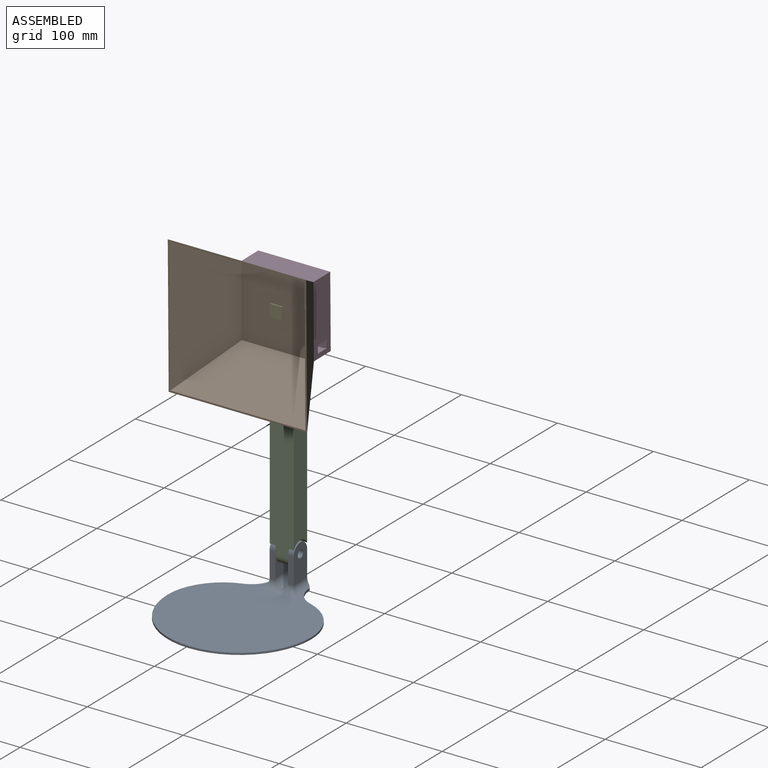
[diagram: assembled view]
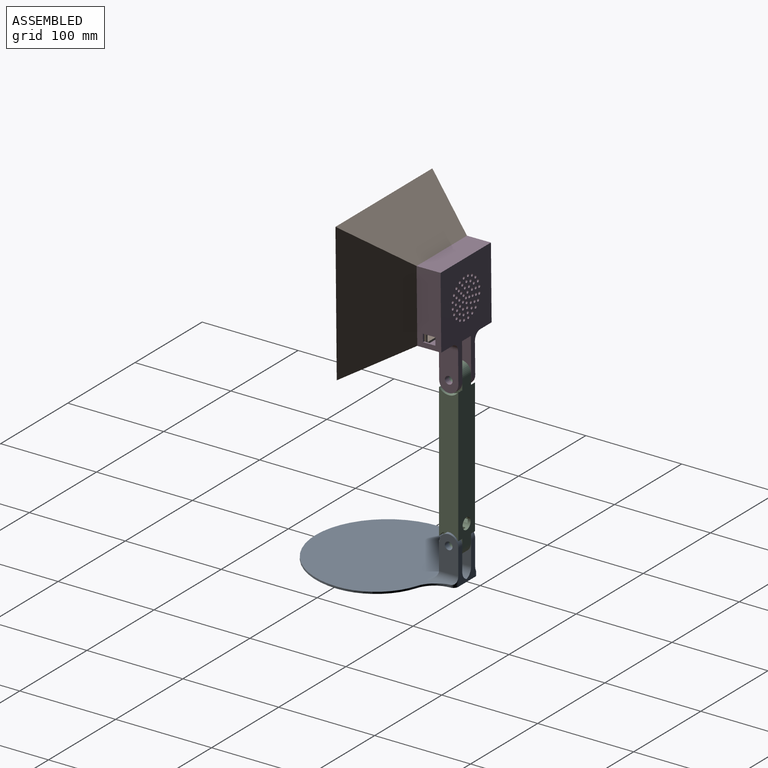
[diagram: assembled view, second angle]
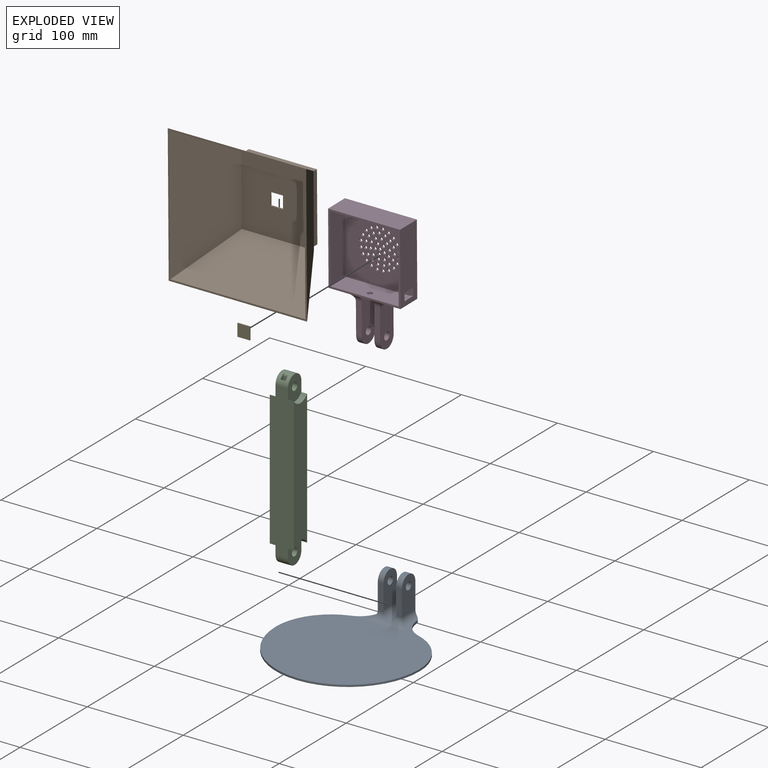
[diagram: exploded view]
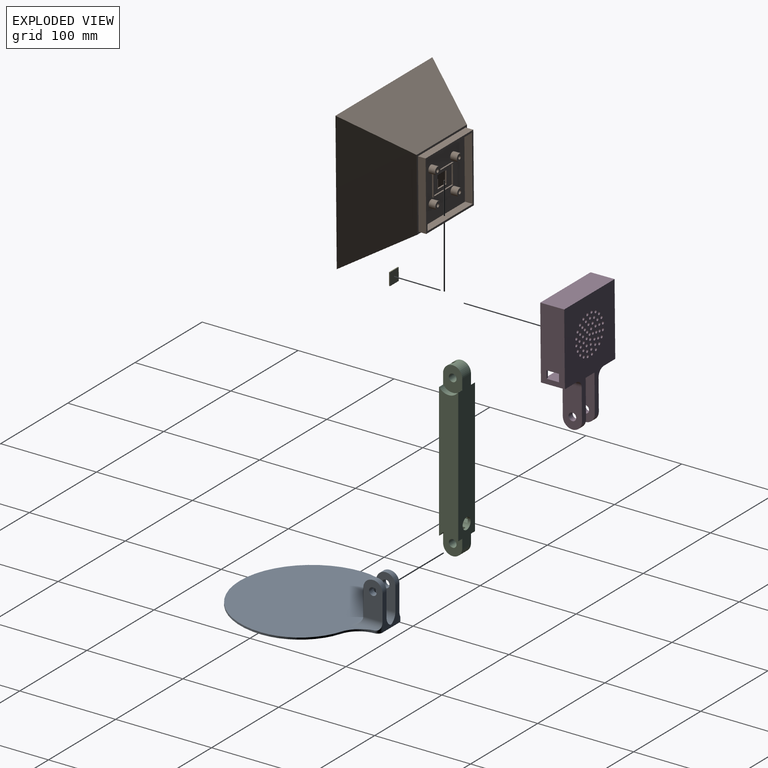
[diagram: exploded view, second angle]
ASSEMBLY  parts=5 mates=4
PART A: 28 faces, bbox 157.5x150x47 mm
  f0: plane 150x141.62mm, normal (0,0,1), area 15996.7mm2, adj f1,f2,f3,f6,f7,f17,f18,f19
  f1: cylinder r=57.5mm len=54.8mm, axis (0,0,-1), area 145.2mm2, adj f0,f2,f5,f7
  f2: cylinder r=75mm len=150mm, axis (0,0,-1), area 471.2mm2, adj f0,f1,f3,f5
  f3: cylinder r=57.5mm len=54.8mm, axis (0,0,-1), area 145.2mm2, adj f0,f2,f5,f6
  f4: plane 37x25.04mm, normal (-1,0,0), area 508.3mm2, adj f5,f8,f9,f10,f13,f21,f23,f26
  f5: plane 157.5x150mm, normal (0,0,-1), area 17064.4mm2, adj f1,f2,f3,f4,f6,f7,f8,f9
  f6: cylinder r=25mm len=22.89mm, axis (0,0,-1), area 64.8mm2, adj f0,f3,f5,f8,f19
  f7: cylinder r=25mm len=22.89mm, axis (0,0,-1), area 64.8mm2, adj f0,f1,f5,f9,f18
  f8: cylinder r=5mm len=37.07mm, axis (0,0,-1), area 32.8mm2, adj f4,f5,f6,f15,f19,f23
  f9: cylinder r=5mm len=37.07mm, axis (0,0,-1), area 32.8mm2, adj f4,f5,f7,f11,f18,f21
  f10: plane 35x20mm, normal (0,1,0), area 606.8mm2, adj f4,f12,f21,f25,f27
  f11: plane 37x20mm, normal (0,-1,0), area 646.8mm2, adj f9,f12,f18,f21,f25
  f12: plane 27x6.2mm, normal (1,0,0), area 162.1mm2, adj f10,f11,f17,f21,f27
  f13: plane 35x20mm, normal (0,-1,0), area 606.8mm2, adj f4,f14,f16,f22,f23,f24,f26
  f14: plane 27x6.2mm, normal (1,0,0), area 162.1mm2, adj f13,f15,f20,f22,f26
  f15: plane 37x20mm, normal (0,1,0), area 646.8mm2, adj f8,f14,f16,f19,f22,f23,f24
  f16: plane 6x0mm, normal (0,0,1), area 0mm2, adj f13,f15,f22,f23
  f17: cylinder r=8mm len=20.57mm, axis (0,1,0), area 152.6mm2, adj f0,f12,f18,f26,f27
  f18: cylinder r=8mm len=28mm, axis (1,0,0), area 243.9mm2, adj f0,f7,f9,f11,f17
  f19: cylinder r=8mm len=28mm, axis (-1,0,0), area 243.9mm2, adj f0,f6,f8,f15,f20
  f20: cylinder r=8mm len=24mm, axis (0,1,0), area 163.3mm2, adj f0,f14,f19,f26
  f21: cylinder r=10mm len=20mm, axis (0,-1,0), area 188.5mm2, adj f4,f9,f10,f11,f12
  f22: cylinder r=10mm len=10mm, axis (0,-1,0), area 94.2mm2, adj f13,f14,f15,f16
  f23: cylinder r=10mm len=10mm, axis (0,1,0), area 94.2mm2, adj f4,f8,f13,f15,f16
  f24: cylinder r=4mm len=8mm, axis (0,-1,0), area 150.8mm2, adj f13,f15
  f25: cylinder r=4mm len=8mm, axis (0,-1,0), area 150.8mm2, adj f10,f11
  f26: cylinder r=10mm len=28mm, axis (1,0,0), area 262.1mm2, adj f0,f4,f13,f14,f17,f20,f27
  f27: cylinder r=10mm len=24.94mm, axis (-1,0,0), area 262.1mm2, adj f4,f10,f12,f17,f26
PART B: 51 faces, bbox 144.3x144.3x68 mm
  f0: plane 28x20mm, normal (0,0,1), area 389.2mm2, adj f13,f14,f15,f16,f42,f43,f44,f49
  f1: plane 67x67mm, normal (0,0,1), area 3627.9mm2, adj f20,f21,f22,f23,f27,f31,f35,f39
  f2: plane 73.27x73.27mm, normal (0,0,-1), area 5197.4mm2, adj f9,f10,f11,f12,f13,f14,f15,f16
  f3: plane 144.28x144.28mm, normal (0,0,-1), area 987.6mm2, adj f4,f5,f6,f7,f9,f10,f11,f12
  f4: plane 144.28x60mm, normal (0,0.87,0.5), area 7596.2mm2, adj f3,f5,f7,f8
  f5: plane 144.28x60mm, normal (-0.87,0,0.5), area 7596.2mm2, adj f3,f4,f6,f8
  f6: plane 144.28x60mm, normal (0,-0.87,0.5), area 7596.2mm2, adj f3,f5,f7,f8
  f7: plane 144.28x60mm, normal (0.87,0,0.5), area 7596.2mm2, adj f3,f4,f6,f8
  f8: plane 75x75mm, normal (0,0,1), area 584mm2, adj f4,f5,f6,f7,f17,f18,f19,f24
  f9: plane 140.82x58.5mm, normal (0,-0.87,-0.5), area 7230.7mm2, adj f2,f3,f10,f12
  f10: plane 140.82x58.5mm, normal (0.87,0,-0.5), area 7230.7mm2, adj f2,f3,f9,f11
  f11: plane 140.82x58.5mm, normal (0,0.87,-0.5), area 7230.7mm2, adj f2,f3,f10,f12
  f12: plane 140.82x58.5mm, normal (-0.87,0,-0.5), area 7230.7mm2, adj f2,f3,f9,f11
  f13: plane 13.07x1.5mm, normal (0,-1,0), area 19.6mm2, adj f0,f2,f14,f16
  f14: plane 13.07x1.5mm, normal (-1,0,0), area 19.6mm2, adj f0,f2,f13,f15
  f15: plane 13.07x1.5mm, normal (0,1,0), area 19.6mm2, adj f0,f2,f14,f16
  f16: plane 13.07x1.5mm, normal (1,0,0), area 19.6mm2, adj f0,f2,f13,f15
  f17: plane 71x8mm, normal (0,-1,0), area 568mm2, adj f8,f18,f24,f25
  f18: plane 71x8mm, normal (1,0,0), area 568mm2, adj f8,f17,f19,f25
  f19: plane 71x8mm, normal (0,1,0), area 568mm2, adj f8,f18,f24,f25
  f20: plane 67x8mm, normal (-1,0,0), area 536mm2, adj f1,f21,f23,f25
  f21: plane 67x8mm, normal (0,1,0), area 536mm2, adj f1,f20,f22,f25
  f22: plane 67x8mm, normal (1,0,0), area 536mm2, adj f1,f21,f23,f25
  f23: plane 67x8mm, normal (0,-1,0), area 536mm2, adj f1,f20,f22,f25
  f24: plane 71x8mm, normal (-1,0,0), area 568mm2, adj f8,f17,f19,f25
  f25: plane 71x71mm, normal (0,0,1), area 552mm2, adj f17,f18,f19,f20,f21,f22,f23,f24
  f26: cylinder r=1.75mm len=7mm, axis (0,0,-1), area 77mm2, adj f28,f29
  f27: cylinder r=4mm len=8mm, axis (0,0,-1), area 175.9mm2, adj f1,f28
  f28: plane 8x8mm, normal (0,0,1), area 40.6mm2, adj f26,f27
  f29: plane 3.5x3.5mm, normal (0,0,1), area 9.6mm2, adj f26
  f30: cylinder r=1.75mm len=7mm, axis (0,0,-1), area 77mm2, adj f32,f33
  f31: cylinder r=4mm len=8mm, axis (0,0,-1), area 175.9mm2, adj f1,f32
  f32: plane 8x8mm, normal (0,0,1), area 40.6mm2, adj f30,f31
  f33: plane 3.5x3.5mm, normal (0,0,1), area 9.6mm2, adj f30
  f34: cylinder r=1.75mm len=7mm, axis (0,0,-1), area 77mm2, adj f36,f37
  f35: cylinder r=4mm len=8mm, axis (0,0,-1), area 175.9mm2, adj f1,f36
  f36: plane 8x8mm, normal (0,0,1), area 40.6mm2, adj f34,f35
  f37: plane 3.5x3.5mm, normal (0,0,1), area 9.6mm2, adj f34
  f38: cylinder r=1.75mm len=7mm, axis (0,0,-1), area 77mm2, adj f40,f41
  f39: cylinder r=4mm len=8mm, axis (0,0,-1), area 175.9mm2, adj f1,f40
  f40: plane 8x8mm, normal (0,0,1), area 40.6mm2, adj f38,f39
  f41: plane 3.5x3.5mm, normal (0,0,1), area 9.6mm2, adj f38
  f42: plane 20x1.5mm, normal (-1,0,0), area 30mm2, adj f0,f43,f49,f50
  f43: plane 28x1.5mm, normal (0,1,0), area 42mm2, adj f0,f42,f44,f50
  f44: plane 20x1.5mm, normal (1,0,0), area 30mm2, adj f0,f43,f49,f50
  f45: plane 22x1.5mm, normal (1,0,0), area 33mm2, adj f1,f46,f48,f50
  f46: plane 30x1.5mm, normal (0,1,0), area 45mm2, adj f1,f45,f47,f50
  f47: plane 22x1.5mm, normal (-1,0,0), area 33mm2, adj f1,f46,f48,f50
  f48: plane 30x1.5mm, normal (0,-1,0), area 45mm2, adj f1,f45,f47,f50
  f49: plane 28x1.5mm, normal (0,-1,0), area 42mm2, adj f0,f42,f44,f50
  f50: plane 30x22mm, normal (0,0,1), area 100mm2, adj f42,f43,f44,f45,f46,f47,f48,f49
PART C: 52 faces, bbox 180x25x20 mm
  f0: plane 160x25mm, normal (0,0,1), area 3760.3mm2, adj f7,f8,f10,f11,f12,f13,f14,f16
  f1: plane 160x25mm, normal (0,0,-1), area 3647.2mm2, adj f7,f8,f10,f11,f12,f13,f14,f16
  f2: plane 133.2x17.18mm, normal (0,0,1), area 2070.8mm2, adj f19,f20,f21,f23,f25,f26,f27,f28
  f3: plane 14x0.1mm, normal (-0.71,-0.71,0), area 2.1mm2, adj f4,f22,f24,f45
  f4: plane 14x7mm, normal (0,-1,0), area 98mm2, adj f3,f6,f22,f24
  f5: plane 14x6.96mm, normal (0,1,0), area 97.5mm2, adj f6,f22,f24,f45
  f6: plane 14x5.18mm, normal (-1,0,0), area 72.6mm2, adj f4,f5,f22,f24
  f7: plane 26x20mm, normal (0,-1,0), area 395mm2, adj f0,f1,f9,f10,f46,f50,f51
  f8: plane 26x20mm, normal (0,1,0), area 395mm2, adj f0,f1,f9,f10,f47,f48,f49
  f9: cylinder r=4mm len=13mm, axis (0,-1,0), area 326.7mm2, adj f7,f8
  f10: cylinder r=10mm len=20mm, axis (0,1,0), area 364.2mm2, adj f0,f1,f7,f8,f19,f21,f36,f37
  f11: plane 140.22x20mm, normal (0,-1,0), area 2647.8mm2, adj f0,f1,f17,f41,f42,f46,f50,f51
  f12: plane 140.22x20mm, normal (0,1,0), area 2647.8mm2, adj f0,f1,f18,f40,f43,f47,f48,f49
  f13: plane 25x20mm, normal (0,-1,0), area 370.8mm2, adj f0,f1,f15,f16,f17,f41,f42
  f14: plane 25x20mm, normal (0,1,0), area 370.8mm2, adj f0,f1,f15,f16,f18,f40,f43
  f15: cylinder r=4mm len=13mm, axis (0,-1,0), area 326.7mm2, adj f13,f14
  f16: cylinder r=10mm len=20mm, axis (0,1,0), area 408.4mm2, adj f0,f1,f13,f14
  f17: cylinder r=11mm len=19.62mm, axis (0,1,0), area 145.4mm2, adj f11,f13,f41,f42
  f18: cylinder r=11mm len=19.62mm, axis (0,-1,0), area 145.4mm2, adj f12,f14,f40,f43
  f19: plane 25.46x15.6mm, normal (0,-1,0), area 170mm2, adj f2,f10,f20,f24,f33,f34,f35,f36
  f20: plane 6.1x5.18mm, normal (1,0,0), area 31.6mm2, adj f2,f19,f21,f38
  f21: plane 25.46x15.6mm, normal (0,1,0), area 170mm2, adj f2,f10,f20,f24,f32,f34,f35,f36
  f22: plane 7.1x5.29mm, normal (0,0,1), area 34.3mm2, adj f3,f4,f5,f6,f45
  f23: plane 14x1mm, normal (1,0,0), area 14mm2, adj f2,f24,f26,f32
  f24: plane 142.84x17.18mm, normal (0,0,-1), area 2218.1mm2, adj f3,f4,f5,f6,f19,f21,f23,f25
  f25: plane 14x1mm, normal (-1,0,0), area 14mm2, adj f2,f24,f26,f30
  f26: plane 118.84x14mm, normal (0,1,0), area 1663.7mm2, adj f2,f23,f24,f25
  f27: plane 14x1mm, normal (1,0,0), area 14mm2, adj f2,f24,f29,f33
  f28: plane 14x1mm, normal (-1,0,0), area 14mm2, adj f2,f24,f29,f31
  f29: plane 118.84x14mm, normal (0,-1,0), area 1663.7mm2, adj f2,f24,f27,f28
  f30: plane 14x2.02mm, normal (-0.71,0.71,0), area 39.9mm2, adj f2,f24,f25,f45
  f31: plane 14x2.37mm, normal (-0.71,-0.71,0), area 46.9mm2, adj f2,f24,f28,f45
  f32: plane 14x5mm, normal (0.71,0.71,0), area 99mm2, adj f2,f21,f23,f24
  f33: plane 14x5mm, normal (0.71,-0.71,0), area 99mm2, adj f2,f19,f24,f27
  f34: plane 13.29x5.18mm, normal (0,0,-1), area 68.9mm2, adj f19,f21,f37,f39
  f35: plane 10.5x5.18mm, normal (0,0,1), area 54.4mm2, adj f19,f21,f36,f38
  f36: cylinder r=3mm len=5.18mm, axis (0,1,0), area 22mm2, adj f10,f19,f21,f35
  f37: cylinder r=0.2mm len=5.18mm, axis (0,1,0), area 2.7mm2, adj f10,f19,f21,f34
  f38: cylinder r=5mm len=5.18mm, axis (0,1,0), area 40.7mm2, adj f19,f20,f21,f35
  f39: cylinder r=0.5mm len=5.18mm, axis (0,-1,0), area 4.1mm2, adj f19,f21,f34,f44
  f40: cylinder r=0.1mm len=6mm, axis (0,-1,0), area 1.6mm2, adj f1,f12,f14,f18
  f41: cylinder r=0.1mm len=6mm, axis (0,1,0), area 1.6mm2, adj f1,f11,f13,f17
  f42: cylinder r=0.1mm len=6mm, axis (0,1,0), area 1.6mm2, adj f0,f11,f13,f17
  f43: cylinder r=0.1mm len=6mm, axis (0,-1,0), area 1.6mm2, adj f0,f12,f14,f18
  f44: plane 5.18x1.6mm, normal (-1,0,0), area 8.3mm2, adj f19,f21,f24,f39
  f45: cylinder r=6mm len=17mm, axis (0,0,-1), area 224.7mm2, adj f1,f2,f3,f5,f22,f24,f30,f31
  f46: cylinder r=12mm len=19.64mm, axis (0,-1,0), area 138mm2, adj f7,f11,f50,f51
  f47: cylinder r=12mm len=19.64mm, axis (0,1,0), area 138mm2, adj f8,f12,f48,f49
  f48: cylinder r=0.1mm len=6mm, axis (0,1,0), area 1.5mm2, adj f0,f8,f12,f47
  f49: cylinder r=0.1mm len=6mm, axis (0,1,0), area 1.5mm2, adj f1,f8,f12,f47
  f50: cylinder r=0.1mm len=6mm, axis (0,-1,0), area 1.5mm2, adj f1,f7,f11,f46
  f51: cylinder r=0.1mm len=6mm, axis (0,-1,0), area 1.5mm2, adj f0,f7,f11,f46
PART D: 82 faces, bbox 75x125x25 mm
  f0: plane 75x25mm, normal (-1,0,0), area 1771mm2, adj f4,f5,f7,f8,f78,f79,f80,f81
  f1: plane 71.2x23.1mm, normal (1,0,0), area 1540.7mm2, adj f4,f9,f11,f12,f78,f79,f80,f81
  f2: plane 25x16.95mm, normal (0,1,0), area 423.7mm2, adj f4,f6,f8,f24
  f3: plane 32.58x6.02mm, normal (0,0,1), area 195.5mm2, adj f14,f18,f21,f25,f26
  f4: plane 75x75mm, normal (0,0,1), area 555.6mm2, adj f0,f1,f2,f5,f6,f7,f9,f10
  f5: plane 75x25mm, normal (0,-1,0), area 1875mm2, adj f0,f4,f6,f8
  f6: plane 75x25mm, normal (1,0,0), area 1875mm2, adj f2,f4,f5,f8
  f7: plane 25x16.95mm, normal (0,1,0), area 423.8mm2, adj f0,f4,f8,f25
  f8: plane 115x75mm, normal (0,0,-1), area 5785.1mm2, adj f0,f2,f5,f6,f7,f14,f16,f17
  f9: plane 71.2x23.1mm, normal (0,1,0), area 1644.7mm2, adj f1,f4,f10,f12
  f10: plane 71.2x23.1mm, normal (-1,0,0), area 1644.7mm2, adj f4,f9,f11,f12
  f11: plane 71.2x23.1mm, normal (0,-1,0), area 1625.1mm2, adj f1,f4,f10,f12,f13
  f12: plane 71.2x71.2mm, normal (0,0,1), area 4708.9mm2, adj f1,f9,f10,f11,f27,f28,f29,f30
  f13: cylinder r=2.5mm len=5mm, axis (0,-1,0), area 45.6mm2, adj f11,f19
  f14: plane 42x20mm, normal (-1,0,0), area 746.8mm2, adj f3,f8,f21,f22,f25
  f15: plane 32.58x6.02mm, normal (0,0,1), area 195.5mm2, adj f16,f17,f20,f24,f26
  f16: plane 42x20mm, normal (1,0,0), area 746.8mm2, adj f8,f15,f20,f23,f24
  f17: plane 49x23.22mm, normal (-1,0,0), area 893mm2, adj f8,f15,f19,f20,f23,f26
  f18: plane 49x23.22mm, normal (1,0,0), area 893mm2, adj f3,f8,f19,f21,f22,f26
  f19: plane 23.22x13.1mm, normal (0,1,0), area 284.6mm2, adj f8,f13,f17,f18,f26
  f20: cylinder r=10mm len=20mm, axis (-1,0,0), area 188.5mm2, adj f8,f15,f16,f17
  f21: cylinder r=10mm len=20mm, axis (-1,0,0), area 188.5mm2, adj f3,f8,f14,f18
  f22: cylinder r=4mm len=8mm, axis (1,0,0), area 150.8mm2, adj f14,f18
  f23: cylinder r=4mm len=8mm, axis (1,0,0), area 150.8mm2, adj f16,f17
  f24: cylinder r=8mm len=25mm, axis (0,0,-1), area 278mm2, adj f2,f8,f15,f16,f26
  f25: cylinder r=8mm len=25mm, axis (0,0,1), area 278mm2, adj f3,f7,f8,f14,f26
  f26: cylinder r=8mm len=41.1mm, axis (1,0,0), area 185.1mm2, adj f3,f4,f15,f17,f18,f19,f24,f25
  f27: cylinder r=1.5mm len=3mm, axis (0,0,-1), area 17.9mm2, adj f8,f12
  f28: cylinder r=1.5mm len=3mm, axis (0,0,-1), area 17.9mm2, adj f8,f12
  f29: cylinder r=1.5mm len=3mm, axis (0,0,-1), area 17.9mm2, adj f8,f12
  f30: cylinder r=1.5mm len=3mm, axis (0,0,-1), area 17.9mm2, adj f8,f12
  f31: cylinder r=1.5mm len=3mm, axis (0,0,-1), area 17.9mm2, adj f8,f12
  f32: cylinder r=1.5mm len=3mm, axis (0,0,-1), area 17.9mm2, adj f8,f12
  f33: cylinder r=1.5mm len=3mm, axis (0,0,-1), area 17.9mm2, adj f8,f12
  f34: cylinder r=1.5mm len=3mm, axis (0,0,-1), area 17.9mm2, adj f8,f12
  f35: cylinder r=1.5mm len=3mm, axis (0,0,-1), area 17.9mm2, adj f8,f12
  f36: cylinder r=1.5mm len=3mm, axis (0,0,-1), area 17.9mm2, adj f8,f12
  f37: cylinder r=1.5mm len=3mm, axis (0,0,-1), area 17.9mm2, adj f8,f12
  f38: cylinder r=1.5mm len=3mm, axis (0,0,-1), area 17.9mm2, adj f8,f12
  f39: cylinder r=1.5mm len=3mm, axis (0,0,-1), area 17.9mm2, adj f8,f12
  f40: cylinder r=1.5mm len=3mm, axis (0,0,-1), area 17.9mm2, adj f8,f12
  f41: cylinder r=1.5mm len=3mm, axis (0,0,-1), area 17.9mm2, adj f8,f12
  f42: cylinder r=1.5mm len=3mm, axis (0,0,-1), area 17.9mm2, adj f8,f12
  f43: cylinder r=1.5mm len=3mm, axis (0,0,-1), area 17.9mm2, adj f8,f12
  f44: cylinder r=1.5mm len=3mm, axis (0,0,-1), area 17.9mm2, adj f8,f12
  f45: cylinder r=1.5mm len=3mm, axis (0,0,-1), area 17.9mm2, adj f8,f12
  f46: cylinder r=1.5mm len=3mm, axis (0,0,-1), area 17.9mm2, adj f8,f12
  f47: cylinder r=1.5mm len=3mm, axis (0,0,-1), area 17.9mm2, adj f8,f12
  f48: cylinder r=1.5mm len=3mm, axis (0,0,-1), area 17.9mm2, adj f8,f12
  f49: cylinder r=1.5mm len=3mm, axis (0,0,-1), area 17.9mm2, adj f8,f12
  f50: cylinder r=1.5mm len=3mm, axis (0,0,-1), area 17.9mm2, adj f8,f12
  f51: cylinder r=1.5mm len=3mm, axis (0,0,-1), area 17.9mm2, adj f8,f12
  f52: cylinder r=1.5mm len=3mm, axis (0,0,-1), area 17.9mm2, adj f8,f12
  f53: cylinder r=1.5mm len=3mm, axis (0,0,-1), area 17.9mm2, adj f8,f12
  f54: cylinder r=1.5mm len=3mm, axis (0,0,-1), area 17.9mm2, adj f8,f12
  f55: cylinder r=1.5mm len=3mm, axis (0,0,-1), area 17.9mm2, adj f8,f12
  f56: cylinder r=1.5mm len=3mm, axis (0,0,-1), area 17.9mm2, adj f8,f12
  f57: cylinder r=1.5mm len=3mm, axis (0,0,-1), area 17.9mm2, adj f8,f12
  f58: cylinder r=1.5mm len=3mm, axis (0,0,-1), area 17.9mm2, adj f8,f12
  f59: cylinder r=1.5mm len=3mm, axis (0,0,-1), area 17.9mm2, adj f8,f12
  f60: cylinder r=1.5mm len=3mm, axis (0,0,-1), area 17.9mm2, adj f8,f12
  f61: cylinder r=1.5mm len=3mm, axis (0,0,-1), area 17.9mm2, adj f8,f12
  f62: cylinder r=1.5mm len=3mm, axis (0,0,-1), area 17.9mm2, adj f8,f12
  f63: cylinder r=1.5mm len=3mm, axis (0,0,-1), area 17.9mm2, adj f8,f12
  f64: cylinder r=1.5mm len=3mm, axis (0,0,-1), area 17.9mm2, adj f8,f12
  f65: cylinder r=1.5mm len=3mm, axis (0,0,-1), area 17.9mm2, adj f8,f12
  f66: cylinder r=1.5mm len=3mm, axis (0,0,-1), area 17.9mm2, adj f8,f12
  f67: cylinder r=1.5mm len=3mm, axis (0,0,-1), area 17.9mm2, adj f8,f12
  f68: cylinder r=1.5mm len=3mm, axis (0,0,-1), area 17.9mm2, adj f8,f12
  f69: cylinder r=1.5mm len=3mm, axis (0,0,-1), area 17.9mm2, adj f8,f12
  f70: cylinder r=1.5mm len=3mm, axis (0,0,-1), area 17.9mm2, adj f8,f12
  f71: cylinder r=1.5mm len=3mm, axis (0,0,-1), area 17.9mm2, adj f8,f12
  f72: cylinder r=1.5mm len=3mm, axis (0,0,-1), area 17.9mm2, adj f8,f12
  f73: cylinder r=1.5mm len=3mm, axis (0,0,-1), area 17.9mm2, adj f8,f12
  f74: cylinder r=1.5mm len=3mm, axis (0,0,-1), area 17.9mm2, adj f8,f12
  f75: cylinder r=1.5mm len=3mm, axis (0,0,-1), area 17.9mm2, adj f8,f12
  f76: cylinder r=1.5mm len=3mm, axis (0,0,-1), area 17.9mm2, adj f8,f12
  f77: cylinder r=1.5mm len=3mm, axis (0,0,-1), area 17.9mm2, adj f8,f12
  f78: plane 8x1.9mm, normal (0,0,-1), area 15.2mm2, adj f0,f1,f79,f81
  f79: plane 13x1.9mm, normal (0,-1,0), area 24.7mm2, adj f0,f1,f78,f80
  f80: plane 8x1.9mm, normal (0,0,1), area 15.2mm2, adj f0,f1,f79,f81
  f81: plane 13x1.9mm, normal (0,1,0), area 24.7mm2, adj f0,f1,f78,f80
PART E: 6 faces, bbox 13x13x1 mm
  f0: plane 13x1mm, normal (0,1,0), area 13mm2, adj f1,f3,f4,f5
  f1: plane 13x1mm, normal (-1,0,0), area 13mm2, adj f0,f2,f4,f5
  f2: plane 13x1mm, normal (0,-1,0), area 13mm2, adj f1,f3,f4,f5
  f3: plane 13x1mm, normal (1,0,0), area 13mm2, adj f0,f2,f4,f5
  f4: plane 13x13mm, normal (0,0,1), area 169mm2, adj f0,f1,f2,f3
  f5: plane 13x13mm, normal (0,0,-1), area 169mm2, adj f0,f1,f2,f3
PLACE A rot(axis=(0,0,-1),90deg) t=(-181.21,-134.03,-408.86)mm
PLACE B rot(axis=(0,0.7,0.71),180deg) t=(-201.44,-91.99,-144.56)mm
PLACE C rot(axis=(0.58,0.58,-0.58),120deg) t=(-190.5,-6.31,-220.08)mm
PLACE D rot(axis=(0,0.71,-0.7),180deg) t=(-190.57,-7,-142.83)mm
PLACE E rot(axis=(-1,0,0),89.5deg) t=(-140.67,-34.8,-111.45)mm
MATE cylindrical C.f15 <-> A.f24  axis (1,0,0) through (-182.38,-16.31,-372.86)mm
MATE cylindrical C.f9 <-> D.f22  axis (1,0,0) through (-182.38,-16.31,-216.86)mm
MATE fastened B.f2 <-> E.f4  axis (0,-1,-0.01) through (-189.07,-33.51,-141.52)mm
MATE fastened B.f8 <-> D.f4  axis (0,1,0.01) through (-226.57,-32.36,-104)mm
